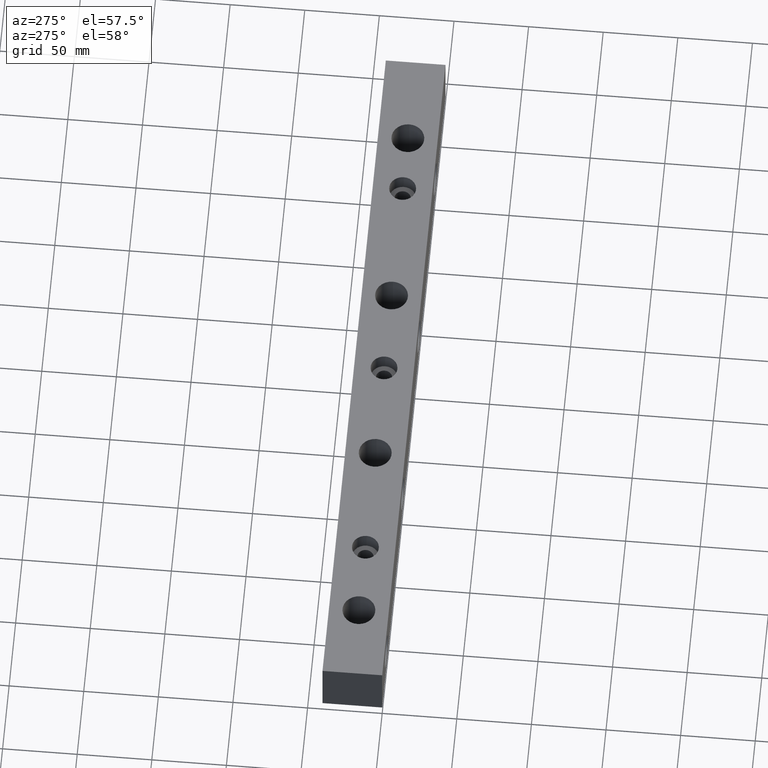
[diagram: clean part render]
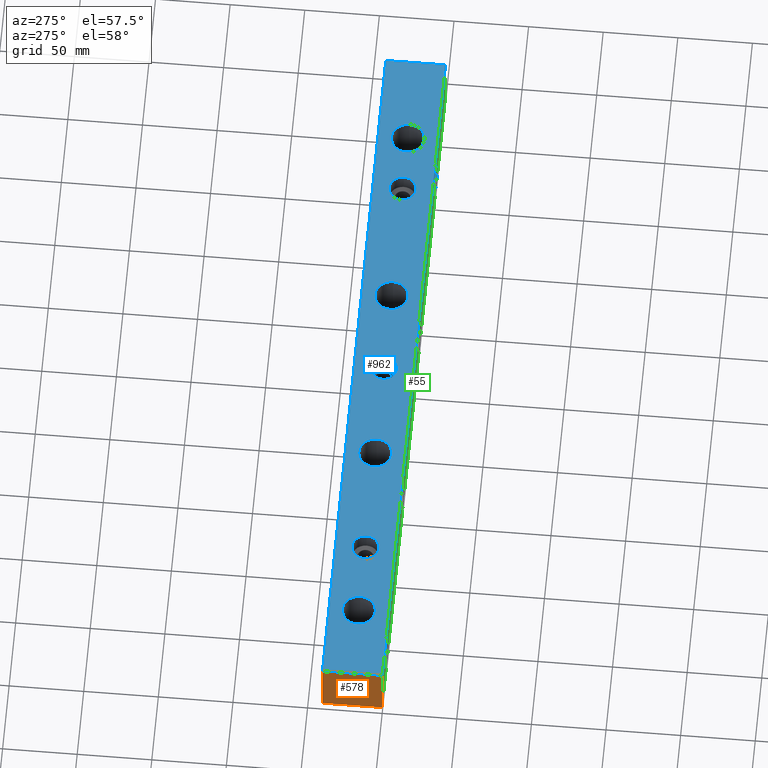
[diagram: same view with three faces highlighted in distinct colors, each labeled with its STEP entity id]
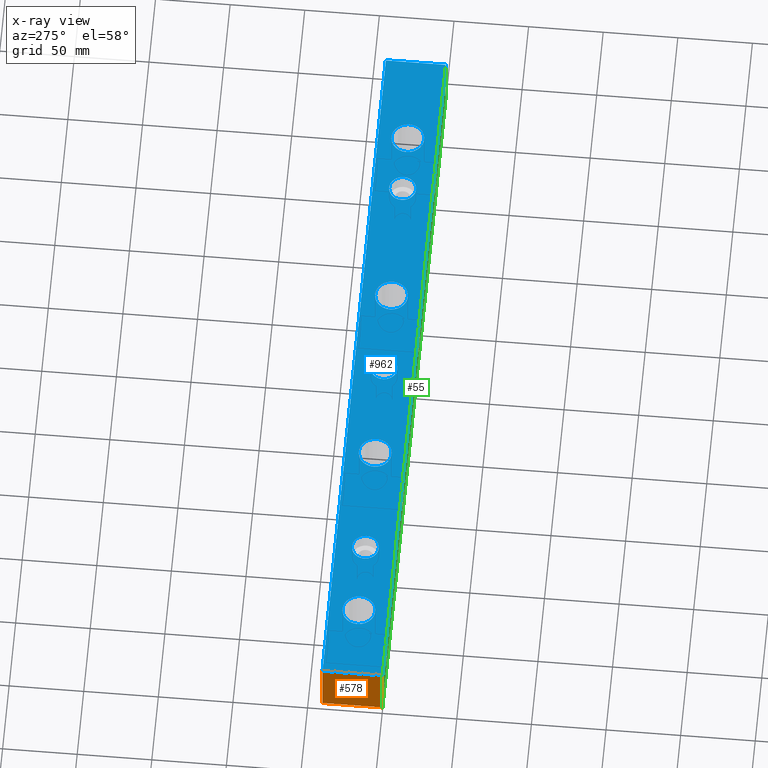
[diagram: x-ray of the same camera — body ghosted, the three highlighted faces saturated]
A machine part, auxiliary view with three faces highlighted in distinct colors.
The next image is the same camera in x-ray (body ghosted, the three faces saturated) — at least one of them is partly hidden behind the body in this view.
Their STEP definitions:

[orange] entity #578 — the highlighted planar face has unit normal (1, 0, 0).
#26 = EDGE_CURVE ( 'NONE', #1342, #852, #1680, .T. ) ;
#94 = CARTESIAN_POINT ( 'NONE',  ( 0.0000000000000000000, 0.0000000000000000000, 40.00000000000000000 ) ) ;
#123 = CARTESIAN_POINT ( 'NONE',  ( 0.0000000000000000000, 0.0000000000000000000, 40.00000000000000000 ) ) ;
#173 = VERTEX_POINT ( 'NONE', #936 ) ;
#195 = LINE ( 'NONE', #690, #463 ) ;
#214 = FACE_OUTER_BOUND ( 'NONE', #1349, .T. ) ;
#273 = DIRECTION ( 'NONE',  ( 1.000000000000000000, 0.0000000000000000000, 0.0000000000000000000 ) ) ;
#356 = DIRECTION ( 'NONE',  ( -0.0000000000000000000, -0.0000000000000000000, -1.000000000000000000 ) ) ;
#420 = DIRECTION ( 'NONE',  ( -0.0000000000000000000, -0.0000000000000000000, -1.000000000000000000 ) ) ;
#463 = VECTOR ( 'NONE', #420, 1000.000000000000000 ) ;
#520 = ORIENTED_EDGE ( 'NONE', *, *, #701, .T. ) ;
#578 = ADVANCED_FACE ( 'NONE', ( #214 ), #921, .F. ) ;
#591 = CARTESIAN_POINT ( 'NONE',  ( 0.0000000000000000000, 0.0000000000000000000, 40.00000000000000000 ) ) ;
#624 = ORIENTED_EDGE ( 'NONE', *, *, #1465, .F. ) ;
#682 = VECTOR ( 'NONE', #356, 1000.000000000000000 ) ;
#684 = DIRECTION ( 'NONE',  ( 0.0000000000000000000, 0.0000000000000000000, -1.000000000000000000 ) ) ;
#690 = CARTESIAN_POINT ( 'NONE',  ( 0.0000000000000000000, 40.00000000000000000, 40.00000000000000000 ) ) ;
#701 = EDGE_CURVE ( 'NONE', #173, #852, #1392, .T. ) ;
#707 = DIRECTION ( 'NONE',  ( -0.0000000000000000000, -1.000000000000000000, -0.0000000000000000000 ) ) ;
#783 = VECTOR ( 'NONE', #707, 1000.000000000000000 ) ;
#830 = CARTESIAN_POINT ( 'NONE',  ( 0.0000000000000000000, 0.0000000000000000000, 0.0000000000000000000 ) ) ;
#852 = VERTEX_POINT ( 'NONE', #830 ) ;
#892 = CARTESIAN_POINT ( 'NONE',  ( 0.0000000000000000000, 0.0000000000000000000, 40.00000000000000000 ) ) ;
#921 = PLANE ( 'NONE',  #1203 ) ;
#929 = ORIENTED_EDGE ( 'NONE', *, *, #1025, .T. ) ;
#936 = CARTESIAN_POINT ( 'NONE',  ( 0.0000000000000000000, 40.00000000000000000, 0.0000000000000000000 ) ) ;
#945 = LINE ( 'NONE', #94, #783 ) ;
#1025 = EDGE_CURVE ( 'NONE', #1488, #173, #195, .T. ) ;
#1203 = AXIS2_PLACEMENT_3D ( 'NONE', #123, #273, #684 ) ;
#1333 = DIRECTION ( 'NONE',  ( -0.0000000000000000000, -1.000000000000000000, -0.0000000000000000000 ) ) ;
#1342 = VERTEX_POINT ( 'NONE', #591 ) ;
#1349 = EDGE_LOOP ( 'NONE', ( #520, #1510, #624, #929 ) ) ;
#1392 = LINE ( 'NONE', #1585, #1529 ) ;
#1465 = EDGE_CURVE ( 'NONE', #1488, #1342, #945, .T. ) ;
#1488 = VERTEX_POINT ( 'NONE', #1652 ) ;
#1510 = ORIENTED_EDGE ( 'NONE', *, *, #26, .F. ) ;
#1529 = VECTOR ( 'NONE', #1333, 1000.000000000000000 ) ;
#1585 = CARTESIAN_POINT ( 'NONE',  ( 0.0000000000000000000, 0.0000000000000000000, 0.0000000000000000000 ) ) ;
#1652 = CARTESIAN_POINT ( 'NONE',  ( 0.0000000000000000000, 40.00000000000000000, 40.00000000000000000 ) ) ;
#1680 = LINE ( 'NONE', #892, #682 ) ;

[blue] entity #962 — the highlighted planar face has unit normal (0, 0, -1).
#5 = AXIS2_PLACEMENT_3D ( 'NONE', #688, #407, #1224 ) ;
#19 = CARTESIAN_POINT ( 'NONE',  ( 300.0000000000000000, 20.00000000000000000, 40.00000000000000000 ) ) ;
#34 = DIRECTION ( 'NONE',  ( 0.0000000000000000000, 1.000000000000000000, 0.0000000000000000000 ) ) ;
#38 = CARTESIAN_POINT ( 'NONE',  ( 50.00000000000000000, 20.00000000000000000, 40.00000000000000000 ) ) ;
#39 = FACE_BOUND ( 'NONE', #247, .T. ) ;
#49 = CARTESIAN_POINT ( 'NONE',  ( 414.0000000000000600, 20.00000000000000000, 40.00000000000000000 ) ) ;
#52 = EDGE_CURVE ( 'NONE', #1038, #1032, #396, .T. ) ;
#58 = VERTEX_POINT ( 'NONE', #1693 ) ;
#60 = AXIS2_PLACEMENT_3D ( 'NONE', #1520, #348, #1157 ) ;
#61 = DIRECTION ( 'NONE',  ( 1.000000000000000000, 0.0000000000000000000, 0.0000000000000000000 ) ) ;
#66 = ORIENTED_EDGE ( 'NONE', *, *, #899, .T. ) ;
#94 = CARTESIAN_POINT ( 'NONE',  ( 0.0000000000000000000, 0.0000000000000000000, 40.00000000000000000 ) ) ;
#106 = ORIENTED_EDGE ( 'NONE', *, *, #1354, .F. ) ;
#114 = EDGE_CURVE ( 'NONE', #1238, #1172, #1338, .T. ) ;
#118 = AXIS2_PLACEMENT_3D ( 'NONE', #187, #982, #61 ) ;
#125 = CARTESIAN_POINT ( 'NONE',  ( 100.0000000000000000, 20.00000000000000000, 40.00000000000000000 ) ) ;
#128 = CARTESIAN_POINT ( 'NONE',  ( 163.9999999999999700, 20.00000000000000000, 40.00000000000000000 ) ) ;
#133 = EDGE_CURVE ( 'NONE', #1032, #1038, #663, .T. ) ;
#135 = ORIENTED_EDGE ( 'NONE', *, *, #114, .F. ) ;
#146 = ORIENTED_EDGE ( 'NONE', *, *, #737, .F. ) ;
#147 = CARTESIAN_POINT ( 'NONE',  ( 100.0000000000000000, 20.00000000000000000, 40.00000000000000000 ) ) ;
#153 = ORIENTED_EDGE ( 'NONE', *, *, #228, .T. ) ;
#159 = CARTESIAN_POINT ( 'NONE',  ( 109.0000000000000000, 20.00000000000000000, 40.00000000000000000 ) ) ;
#160 = CIRCLE ( 'NONE', #1467, 9.000000000000007100 ) ;
#168 = VERTEX_POINT ( 'NONE', #1216 ) ;
#171 = EDGE_CURVE ( 'NONE', #1377, #1488, #1049, .T. ) ;
#179 = AXIS2_PLACEMENT_3D ( 'NONE', #19, #941, #1222 ) ;
#187 = CARTESIAN_POINT ( 'NONE',  ( 175.0000000000000000, 20.00000000000000000, 40.00000000000000000 ) ) ;
#196 = EDGE_CURVE ( 'NONE', #1594, #1324, #1653, .T. ) ;
#199 = ORIENTED_EDGE ( 'NONE', *, *, #602, .F. ) ;
#212 = CARTESIAN_POINT ( 'NONE',  ( 175.0000000000000000, 20.00000000000000000, 40.00000000000000000 ) ) ;
#224 = AXIS2_PLACEMENT_3D ( 'NONE', #818, #1041, #1060 ) ;
#228 = EDGE_CURVE ( 'NONE', #381, #1377, #1246, .T. ) ;
#247 = EDGE_LOOP ( 'NONE', ( #106, #199 ) ) ;
#268 = DIRECTION ( 'NONE',  ( 1.000000000000000000, 0.0000000000000000000, 0.0000000000000000000 ) ) ;
#294 = CIRCLE ( 'NONE', #1450, 9.000000000000007100 ) ;
#296 = LINE ( 'NONE', #467, #661 ) ;
#323 = CARTESIAN_POINT ( 'NONE',  ( 435.9999999999999400, 20.00000000000000000, 40.00000000000000000 ) ) ;
#348 = DIRECTION ( 'NONE',  ( 0.0000000000000000000, 0.0000000000000000000, -1.000000000000000000 ) ) ;
#357 = CARTESIAN_POINT ( 'NONE',  ( 39.00000000000000700, 20.00000000000000000, 40.00000000000000000 ) ) ;
#363 = VERTEX_POINT ( 'NONE', #357 ) ;
#380 = CARTESIAN_POINT ( 'NONE',  ( 385.0000000000000000, 20.00000000000000000, 40.00000000000000000 ) ) ;
#381 = VERTEX_POINT ( 'NONE', #795 ) ;
#390 = CARTESIAN_POINT ( 'NONE',  ( 242.5000000000000000, 20.00000000000000000, 40.00000000000000000 ) ) ;
#396 = CIRCLE ( 'NONE', #1261, 8.999999999999994700 ) ;
#397 = ORIENTED_EDGE ( 'NONE', *, *, #196, .F. ) ;
#401 = ORIENTED_EDGE ( 'NONE', *, *, #133, .F. ) ;
#402 = EDGE_LOOP ( 'NONE', ( #749, #1538 ) ) ;
#407 = DIRECTION ( 'NONE',  ( 0.0000000000000000000, 0.0000000000000000000, 1.000000000000000000 ) ) ;
#409 = CARTESIAN_POINT ( 'NONE',  ( 485.0000000000000000, 0.0000000000000000000, 40.00000000000000000 ) ) ;
#418 = AXIS2_PLACEMENT_3D ( 'NONE', #390, #1330, #521 ) ;
#419 = EDGE_LOOP ( 'NONE', ( #645, #401 ) ) ;
#443 = CARTESIAN_POINT ( 'NONE',  ( 376.0000000000000000, 20.00000000000000000, 40.00000000000000000 ) ) ;
#456 = EDGE_CURVE ( 'NONE', #58, #1633, #1019, .T. ) ;
#467 = CARTESIAN_POINT ( 'NONE',  ( 0.0000000000000000000, 0.0000000000000000000, 40.00000000000000000 ) ) ;
#478 = ORIENTED_EDGE ( 'NONE', *, *, #1073, .F. ) ;
#493 = VERTEX_POINT ( 'NONE', #128 ) ;
#512 = VERTEX_POINT ( 'NONE', #642 ) ;
#521 = DIRECTION ( 'NONE',  ( 1.000000000000000000, 0.0000000000000000000, 0.0000000000000000000 ) ) ;
#526 = EDGE_CURVE ( 'NONE', #168, #363, #1065, .T. ) ;
#529 = DIRECTION ( 'NONE',  ( -1.000000000000000000, -0.0000000000000000000, -0.0000000000000000000 ) ) ;
#542 = CARTESIAN_POINT ( 'NONE',  ( 425.0000000000000000, 20.00000000000000000, 40.00000000000000000 ) ) ;
#579 = CARTESIAN_POINT ( 'NONE',  ( 485.0000000000000000, 40.00000000000000000, 40.00000000000000000 ) ) ;
#585 = CARTESIAN_POINT ( 'NONE',  ( 300.0000000000000000, 20.00000000000000000, 40.00000000000000000 ) ) ;
#591 = CARTESIAN_POINT ( 'NONE',  ( 0.0000000000000000000, 0.0000000000000000000, 40.00000000000000000 ) ) ;
#592 = ORIENTED_EDGE ( 'NONE', *, *, #171, .T. ) ;
#602 = EDGE_CURVE ( 'NONE', #493, #512, #1433, .T. ) ;
#606 = DIRECTION ( 'NONE',  ( 1.000000000000000000, 0.0000000000000000000, 0.0000000000000000000 ) ) ;
#621 = CARTESIAN_POINT ( 'NONE',  ( 251.5000000000000000, 20.00000000000000000, 40.00000000000000000 ) ) ;
#632 = DIRECTION ( 'NONE',  ( 1.000000000000000000, 0.0000000000000000000, 0.0000000000000000000 ) ) ;
#634 = CIRCLE ( 'NONE', #857, 10.99999999999999600 ) ;
#642 = CARTESIAN_POINT ( 'NONE',  ( 186.0000000000000000, 20.00000000000000000, 40.00000000000000000 ) ) ;
#645 = ORIENTED_EDGE ( 'NONE', *, *, #52, .F. ) ;
#651 = DIRECTION ( 'NONE',  ( 1.000000000000000000, 0.0000000000000000000, 0.0000000000000000000 ) ) ;
#658 = DIRECTION ( 'NONE',  ( 0.0000000000000000000, 0.0000000000000000000, 1.000000000000000000 ) ) ;
#659 = CIRCLE ( 'NONE', #5, 10.99999999999995400 ) ;
#661 = VECTOR ( 'NONE', #866, 1000.000000000000000 ) ;
#663 = CIRCLE ( 'NONE', #708, 8.999999999999994700 ) ;
#670 = CARTESIAN_POINT ( 'NONE',  ( 91.00000000000001400, 20.00000000000000000, 40.00000000000000000 ) ) ;
#676 = CARTESIAN_POINT ( 'NONE',  ( 0.0000000000000000000, 40.00000000000000000, 40.00000000000000000 ) ) ;
#681 = EDGE_CURVE ( 'NONE', #1172, #1238, #294, .T. ) ;
#688 = CARTESIAN_POINT ( 'NONE',  ( 425.0000000000000000, 20.00000000000000000, 40.00000000000000000 ) ) ;
#696 = EDGE_CURVE ( 'NONE', #1324, #1594, #659, .T. ) ;
#697 = DIRECTION ( 'NONE',  ( 1.000000000000000000, 0.0000000000000000000, 0.0000000000000000000 ) ) ;
#707 = DIRECTION ( 'NONE',  ( -0.0000000000000000000, -1.000000000000000000, -0.0000000000000000000 ) ) ;
#708 = AXIS2_PLACEMENT_3D ( 'NONE', #147, #1067, #268 ) ;
#737 = EDGE_CURVE ( 'NONE', #1558, #1634, #1007, .T. ) ;
#749 = ORIENTED_EDGE ( 'NONE', *, *, #456, .F. ) ;
#757 = DIRECTION ( 'NONE',  ( 1.000000000000000000, 0.0000000000000000000, 0.0000000000000000000 ) ) ;
#783 = VECTOR ( 'NONE', #707, 1000.000000000000000 ) ;
#784 = DIRECTION ( 'NONE',  ( 0.0000000000000000000, 0.0000000000000000000, 1.000000000000000000 ) ) ;
#795 = CARTESIAN_POINT ( 'NONE',  ( 485.0000000000000000, 0.0000000000000000000, 40.00000000000000000 ) ) ;
#803 = FACE_BOUND ( 'NONE', #402, .T. ) ;
#814 = EDGE_LOOP ( 'NONE', ( #1665, #478 ) ) ;
#818 = CARTESIAN_POINT ( 'NONE',  ( 50.00000000000000000, 20.00000000000000000, 40.00000000000000000 ) ) ;
#829 = VECTOR ( 'NONE', #529, 1000.000000000000000 ) ;
#842 = FACE_OUTER_BOUND ( 'NONE', #969, .T. ) ;
#857 = AXIS2_PLACEMENT_3D ( 'NONE', #38, #1225, #1217 ) ;
#859 = AXIS2_PLACEMENT_3D ( 'NONE', #380, #658, #632 ) ;
#866 = DIRECTION ( 'NONE',  ( 1.000000000000000000, 0.0000000000000000000, 0.0000000000000000000 ) ) ;
#874 = EDGE_CURVE ( 'NONE', #1634, #1558, #881, .T. ) ;
#881 = CIRCLE ( 'NONE', #1170, 11.00000000000001100 ) ;
#887 = FACE_BOUND ( 'NONE', #1637, .T. ) ;
#899 = EDGE_CURVE ( 'NONE', #1342, #381, #296, .T. ) ;
#919 = FACE_BOUND ( 'NONE', #1446, .T. ) ;
#941 = DIRECTION ( 'NONE',  ( 0.0000000000000000000, 0.0000000000000000000, 1.000000000000000000 ) ) ;
#945 = LINE ( 'NONE', #94, #783 ) ;
#962 = ADVANCED_FACE ( 'NONE', ( #1008, #803, #1531, #39, #919, #887, #1248, #842 ), #1399, .F. ) ;
#969 = EDGE_LOOP ( 'NONE', ( #1571, #66, #153, #592 ) ) ;
#982 = DIRECTION ( 'NONE',  ( 0.0000000000000000000, 0.0000000000000000000, 1.000000000000000000 ) ) ;
#998 = DIRECTION ( 'NONE',  ( 0.0000000000000000000, 0.0000000000000000000, 1.000000000000000000 ) ) ;
#1007 = CIRCLE ( 'NONE', #179, 11.00000000000001100 ) ;
#1008 = FACE_BOUND ( 'NONE', #419, .T. ) ;
#1019 = CIRCLE ( 'NONE', #859, 9.000000000000007100 ) ;
#1032 = VERTEX_POINT ( 'NONE', #670 ) ;
#1036 = CARTESIAN_POINT ( 'NONE',  ( 385.0000000000000000, 20.00000000000000000, 40.00000000000000000 ) ) ;
#1038 = VERTEX_POINT ( 'NONE', #159 ) ;
#1041 = DIRECTION ( 'NONE',  ( 0.0000000000000000000, 0.0000000000000000000, 1.000000000000000000 ) ) ;
#1049 = LINE ( 'NONE', #676, #829 ) ;
#1055 = ORIENTED_EDGE ( 'NONE', *, *, #696, .F. ) ;
#1060 = DIRECTION ( 'NONE',  ( 1.000000000000000000, 0.0000000000000000000, 0.0000000000000000000 ) ) ;
#1065 = CIRCLE ( 'NONE', #224, 10.99999999999999600 ) ;
#1067 = DIRECTION ( 'NONE',  ( 0.0000000000000000000, 0.0000000000000000000, 1.000000000000000000 ) ) ;
#1073 = EDGE_CURVE ( 'NONE', #363, #168, #634, .T. ) ;
#1078 = EDGE_LOOP ( 'NONE', ( #135, #1613 ) ) ;
#1132 = VECTOR ( 'NONE', #34, 1000.000000000000000 ) ;
#1157 = DIRECTION ( 'NONE',  ( -1.000000000000000000, 0.0000000000000000000, -0.0000000000000000000 ) ) ;
#1170 = AXIS2_PLACEMENT_3D ( 'NONE', #585, #1390, #757 ) ;
#1172 = VERTEX_POINT ( 'NONE', #1518 ) ;
#1216 = CARTESIAN_POINT ( 'NONE',  ( 61.00000000000000000, 20.00000000000000000, 40.00000000000000000 ) ) ;
#1217 = DIRECTION ( 'NONE',  ( 1.000000000000000000, 0.0000000000000000000, 0.0000000000000000000 ) ) ;
#1222 = DIRECTION ( 'NONE',  ( 1.000000000000000000, 0.0000000000000000000, 0.0000000000000000000 ) ) ;
#1224 = DIRECTION ( 'NONE',  ( 1.000000000000000000, 0.0000000000000000000, 0.0000000000000000000 ) ) ;
#1225 = DIRECTION ( 'NONE',  ( 0.0000000000000000000, 0.0000000000000000000, 1.000000000000000000 ) ) ;
#1238 = VERTEX_POINT ( 'NONE', #621 ) ;
#1246 = LINE ( 'NONE', #409, #1132 ) ;
#1248 = FACE_BOUND ( 'NONE', #814, .T. ) ;
#1261 = AXIS2_PLACEMENT_3D ( 'NONE', #125, #1560, #651 ) ;
#1278 = EDGE_CURVE ( 'NONE', #1633, #58, #160, .T. ) ;
#1287 = AXIS2_PLACEMENT_3D ( 'NONE', #212, #998, #1371 ) ;
#1289 = DIRECTION ( 'NONE',  ( 0.0000000000000000000, 0.0000000000000000000, 1.000000000000000000 ) ) ;
#1324 = VERTEX_POINT ( 'NONE', #323 ) ;
#1330 = DIRECTION ( 'NONE',  ( 0.0000000000000000000, 0.0000000000000000000, 1.000000000000000000 ) ) ;
#1338 = CIRCLE ( 'NONE', #418, 9.000000000000007100 ) ;
#1342 = VERTEX_POINT ( 'NONE', #591 ) ;
#1354 = EDGE_CURVE ( 'NONE', #512, #493, #1504, .T. ) ;
#1371 = DIRECTION ( 'NONE',  ( 1.000000000000000000, 0.0000000000000000000, 0.0000000000000000000 ) ) ;
#1372 = CARTESIAN_POINT ( 'NONE',  ( 311.0000000000000000, 20.00000000000000000, 40.00000000000000000 ) ) ;
#1377 = VERTEX_POINT ( 'NONE', #579 ) ;
#1390 = DIRECTION ( 'NONE',  ( 0.0000000000000000000, 0.0000000000000000000, 1.000000000000000000 ) ) ;
#1399 = PLANE ( 'NONE',  #60 ) ;
#1405 = ORIENTED_EDGE ( 'NONE', *, *, #874, .F. ) ;
#1433 = CIRCLE ( 'NONE', #1287, 11.00000000000001100 ) ;
#1446 = EDGE_LOOP ( 'NONE', ( #146, #1405 ) ) ;
#1450 = AXIS2_PLACEMENT_3D ( 'NONE', #1562, #784, #1694 ) ;
#1465 = EDGE_CURVE ( 'NONE', #1488, #1342, #945, .T. ) ;
#1467 = AXIS2_PLACEMENT_3D ( 'NONE', #1036, #1289, #606 ) ;
#1469 = DIRECTION ( 'NONE',  ( 0.0000000000000000000, 0.0000000000000000000, 1.000000000000000000 ) ) ;
#1487 = CARTESIAN_POINT ( 'NONE',  ( 289.0000000000000000, 20.00000000000000000, 40.00000000000000000 ) ) ;
#1488 = VERTEX_POINT ( 'NONE', #1652 ) ;
#1504 = CIRCLE ( 'NONE', #118, 11.00000000000001100 ) ;
#1518 = CARTESIAN_POINT ( 'NONE',  ( 233.5000000000000000, 20.00000000000000000, 40.00000000000000000 ) ) ;
#1520 = CARTESIAN_POINT ( 'NONE',  ( 0.0000000000000000000, 0.0000000000000000000, 40.00000000000000000 ) ) ;
#1531 = FACE_BOUND ( 'NONE', #1078, .T. ) ;
#1538 = ORIENTED_EDGE ( 'NONE', *, *, #1278, .F. ) ;
#1558 = VERTEX_POINT ( 'NONE', #1372 ) ;
#1560 = DIRECTION ( 'NONE',  ( 0.0000000000000000000, 0.0000000000000000000, 1.000000000000000000 ) ) ;
#1562 = CARTESIAN_POINT ( 'NONE',  ( 242.5000000000000000, 20.00000000000000000, 40.00000000000000000 ) ) ;
#1571 = ORIENTED_EDGE ( 'NONE', *, *, #1465, .T. ) ;
#1572 = AXIS2_PLACEMENT_3D ( 'NONE', #542, #1469, #697 ) ;
#1594 = VERTEX_POINT ( 'NONE', #49 ) ;
#1613 = ORIENTED_EDGE ( 'NONE', *, *, #681, .F. ) ;
#1633 = VERTEX_POINT ( 'NONE', #443 ) ;
#1634 = VERTEX_POINT ( 'NONE', #1487 ) ;
#1637 = EDGE_LOOP ( 'NONE', ( #1055, #397 ) ) ;
#1652 = CARTESIAN_POINT ( 'NONE',  ( 0.0000000000000000000, 40.00000000000000000, 40.00000000000000000 ) ) ;
#1653 = CIRCLE ( 'NONE', #1572, 10.99999999999995400 ) ;
#1665 = ORIENTED_EDGE ( 'NONE', *, *, #526, .F. ) ;
#1693 = CARTESIAN_POINT ( 'NONE',  ( 394.0000000000000000, 20.00000000000000000, 40.00000000000000000 ) ) ;
#1694 = DIRECTION ( 'NONE',  ( 1.000000000000000000, 0.0000000000000000000, 0.0000000000000000000 ) ) ;

[green] entity #55 — the highlighted planar face has unit normal (0, 1, 0).
#20 = VERTEX_POINT ( 'NONE', #633 ) ;
#25 = ORIENTED_EDGE ( 'NONE', *, *, #1517, .F. ) ;
#26 = EDGE_CURVE ( 'NONE', #1342, #852, #1680, .T. ) ;
#45 = EDGE_CURVE ( 'NONE', #221, #494, #1456, .T. ) ;
#51 = CIRCLE ( 'NONE', #806, 10.99999999999997500 ) ;
#55 = ADVANCED_FACE ( 'NONE', ( #617, #317, #845, #1588, #904 ), #1192, .F. ) ;
#64 = CARTESIAN_POINT ( 'NONE',  ( 282.0000000000000000, 0.0000000000000000000, 20.00000000000000000 ) ) ;
#131 = CARTESIAN_POINT ( 'NONE',  ( 32.00000000000000000, 0.0000000000000000000, 20.00000000000000000 ) ) ;
#137 = CIRCLE ( 'NONE', #719, 11.00000000000000700 ) ;
#163 = DIRECTION ( 'NONE',  ( 0.0000000000000000000, 0.0000000000000000000, -1.000000000000000000 ) ) ;
#191 = CARTESIAN_POINT ( 'NONE',  ( 282.0000000000000000, 0.0000000000000000000, 30.99999999999997500 ) ) ;
#219 = DIRECTION ( 'NONE',  ( 0.0000000000000000000, 0.0000000000000000000, -1.000000000000000000 ) ) ;
#221 = VERTEX_POINT ( 'NONE', #946 ) ;
#225 = VERTEX_POINT ( 'NONE', #689 ) ;
#242 = VERTEX_POINT ( 'NONE', #954 ) ;
#245 = CARTESIAN_POINT ( 'NONE',  ( 0.0000000000000000000, 0.0000000000000000000, 40.00000000000000000 ) ) ;
#253 = DIRECTION ( 'NONE',  ( 0.0000000000000000000, -1.000000000000000000, 0.0000000000000000000 ) ) ;
#259 = AXIS2_PLACEMENT_3D ( 'NONE', #662, #272, #1583 ) ;
#272 = DIRECTION ( 'NONE',  ( 0.0000000000000000000, -1.000000000000000000, 0.0000000000000000000 ) ) ;
#275 = EDGE_CURVE ( 'NONE', #381, #242, #1676, .T. ) ;
#296 = LINE ( 'NONE', #467, #661 ) ;
#317 = FACE_BOUND ( 'NONE', #1309, .T. ) ;
#322 = AXIS2_PLACEMENT_3D ( 'NONE', #245, #1199, #1050 ) ;
#333 = CIRCLE ( 'NONE', #379, 11.00000000000000700 ) ;
#356 = DIRECTION ( 'NONE',  ( -0.0000000000000000000, -0.0000000000000000000, -1.000000000000000000 ) ) ;
#365 = DIRECTION ( 'NONE',  ( 0.0000000000000000000, 0.0000000000000000000, -1.000000000000000000 ) ) ;
#368 = CIRCLE ( 'NONE', #1193, 10.99999999999997500 ) ;
#379 = AXIS2_PLACEMENT_3D ( 'NONE', #404, #253, #942 ) ;
#381 = VERTEX_POINT ( 'NONE', #795 ) ;
#404 = CARTESIAN_POINT ( 'NONE',  ( 157.0000000000000000, 0.0000000000000000000, 20.00000000000000000 ) ) ;
#433 = VERTEX_POINT ( 'NONE', #1428 ) ;
#446 = ORIENTED_EDGE ( 'NONE', *, *, #797, .F. ) ;
#447 = DIRECTION ( 'NONE',  ( 0.0000000000000000000, -1.000000000000000000, 0.0000000000000000000 ) ) ;
#454 = DIRECTION ( 'NONE',  ( 0.0000000000000000000, -1.000000000000000000, 0.0000000000000000000 ) ) ;
#462 = EDGE_CURVE ( 'NONE', #1028, #1457, #137, .T. ) ;
#467 = CARTESIAN_POINT ( 'NONE',  ( 0.0000000000000000000, 0.0000000000000000000, 40.00000000000000000 ) ) ;
#469 = CIRCLE ( 'NONE', #831, 11.00000000000000700 ) ;
#470 = ORIENTED_EDGE ( 'NONE', *, *, #1537, .F. ) ;
#474 = DIRECTION ( 'NONE',  ( 1.000000000000000000, 0.0000000000000000000, 0.0000000000000000000 ) ) ;
#491 = EDGE_LOOP ( 'NONE', ( #446, #1591 ) ) ;
#492 = EDGE_CURVE ( 'NONE', #433, #225, #51, .T. ) ;
#494 = VERTEX_POINT ( 'NONE', #1029 ) ;
#575 = ORIENTED_EDGE ( 'NONE', *, *, #721, .F. ) ;
#577 = EDGE_CURVE ( 'NONE', #1457, #1028, #333, .T. ) ;
#591 = CARTESIAN_POINT ( 'NONE',  ( 0.0000000000000000000, 0.0000000000000000000, 40.00000000000000000 ) ) ;
#597 = ORIENTED_EDGE ( 'NONE', *, *, #462, .F. ) ;
#617 = FACE_BOUND ( 'NONE', #1458, .T. ) ;
#633 = CARTESIAN_POINT ( 'NONE',  ( 282.0000000000000000, 0.0000000000000000000, 9.000000000000024900 ) ) ;
#661 = VECTOR ( 'NONE', #866, 1000.000000000000000 ) ;
#662 = CARTESIAN_POINT ( 'NONE',  ( 282.0000000000000000, 0.0000000000000000000, 20.00000000000000000 ) ) ;
#665 = EDGE_LOOP ( 'NONE', ( #1104, #794, #1171, #1013 ) ) ;
#682 = VECTOR ( 'NONE', #356, 1000.000000000000000 ) ;
#689 = CARTESIAN_POINT ( 'NONE',  ( 407.0000000000000000, 0.0000000000000000000, 9.000000000000024900 ) ) ;
#718 = CARTESIAN_POINT ( 'NONE',  ( 32.00000000000000000, 0.0000000000000000000, 20.00000000000000000 ) ) ;
#719 = AXIS2_PLACEMENT_3D ( 'NONE', #1686, #1692, #1438 ) ;
#721 = EDGE_CURVE ( 'NONE', #20, #1352, #1699, .T. ) ;
#782 = DIRECTION ( 'NONE',  ( 0.0000000000000000000, 0.0000000000000000000, -1.000000000000000000 ) ) ;
#794 = ORIENTED_EDGE ( 'NONE', *, *, #275, .F. ) ;
#795 = CARTESIAN_POINT ( 'NONE',  ( 485.0000000000000000, 0.0000000000000000000, 40.00000000000000000 ) ) ;
#797 = EDGE_CURVE ( 'NONE', #225, #433, #1675, .T. ) ;
#804 = AXIS2_PLACEMENT_3D ( 'NONE', #1292, #1162, #219 ) ;
#806 = AXIS2_PLACEMENT_3D ( 'NONE', #1184, #1180, #365 ) ;
#830 = CARTESIAN_POINT ( 'NONE',  ( 0.0000000000000000000, 0.0000000000000000000, 0.0000000000000000000 ) ) ;
#831 = AXIS2_PLACEMENT_3D ( 'NONE', #718, #447, #1259 ) ;
#845 = FACE_BOUND ( 'NONE', #491, .T. ) ;
#850 = EDGE_LOOP ( 'NONE', ( #25, #922 ) ) ;
#852 = VERTEX_POINT ( 'NONE', #830 ) ;
#866 = DIRECTION ( 'NONE',  ( 1.000000000000000000, 0.0000000000000000000, 0.0000000000000000000 ) ) ;
#892 = CARTESIAN_POINT ( 'NONE',  ( 0.0000000000000000000, 0.0000000000000000000, 40.00000000000000000 ) ) ;
#898 = LINE ( 'NONE', #1663, #1578 ) ;
#899 = EDGE_CURVE ( 'NONE', #1342, #381, #296, .T. ) ;
#904 = FACE_OUTER_BOUND ( 'NONE', #665, .T. ) ;
#911 = DIRECTION ( 'NONE',  ( 0.0000000000000000000, -1.000000000000000000, 0.0000000000000000000 ) ) ;
#922 = ORIENTED_EDGE ( 'NONE', *, *, #45, .F. ) ;
#939 = VECTOR ( 'NONE', #1347, 1000.000000000000000 ) ;
#942 = DIRECTION ( 'NONE',  ( 0.0000000000000000000, 0.0000000000000000000, -1.000000000000000000 ) ) ;
#946 = CARTESIAN_POINT ( 'NONE',  ( 32.00000000000000000, 0.0000000000000000000, 31.00000000000000700 ) ) ;
#954 = CARTESIAN_POINT ( 'NONE',  ( 485.0000000000000000, 0.0000000000000000000, 0.0000000000000000000 ) ) ;
#1013 = ORIENTED_EDGE ( 'NONE', *, *, #26, .T. ) ;
#1028 = VERTEX_POINT ( 'NONE', #1600 ) ;
#1029 = CARTESIAN_POINT ( 'NONE',  ( 32.00000000000000000, 0.0000000000000000000, 8.999999999999994700 ) ) ;
#1050 = DIRECTION ( 'NONE',  ( 0.0000000000000000000, -0.0000000000000000000, 1.000000000000000000 ) ) ;
#1104 = ORIENTED_EDGE ( 'NONE', *, *, #1636, .T. ) ;
#1124 = CARTESIAN_POINT ( 'NONE',  ( 157.0000000000000000, 0.0000000000000000000, 31.00000000000000700 ) ) ;
#1162 = DIRECTION ( 'NONE',  ( 0.0000000000000000000, -1.000000000000000000, 0.0000000000000000000 ) ) ;
#1171 = ORIENTED_EDGE ( 'NONE', *, *, #899, .F. ) ;
#1180 = DIRECTION ( 'NONE',  ( 0.0000000000000000000, -1.000000000000000000, 0.0000000000000000000 ) ) ;
#1184 = CARTESIAN_POINT ( 'NONE',  ( 407.0000000000000000, 0.0000000000000000000, 20.00000000000000000 ) ) ;
#1192 = PLANE ( 'NONE',  #322 ) ;
#1193 = AXIS2_PLACEMENT_3D ( 'NONE', #64, #454, #163 ) ;
#1199 = DIRECTION ( 'NONE',  ( 0.0000000000000000000, 1.000000000000000000, 0.0000000000000000000 ) ) ;
#1236 = CARTESIAN_POINT ( 'NONE',  ( 485.0000000000000000, 0.0000000000000000000, 40.00000000000000000 ) ) ;
#1259 = DIRECTION ( 'NONE',  ( 0.0000000000000000000, 0.0000000000000000000, -1.000000000000000000 ) ) ;
#1292 = CARTESIAN_POINT ( 'NONE',  ( 407.0000000000000000, 0.0000000000000000000, 20.00000000000000000 ) ) ;
#1309 = EDGE_LOOP ( 'NONE', ( #575, #470 ) ) ;
#1342 = VERTEX_POINT ( 'NONE', #591 ) ;
#1347 = DIRECTION ( 'NONE',  ( -0.0000000000000000000, -0.0000000000000000000, -1.000000000000000000 ) ) ;
#1352 = VERTEX_POINT ( 'NONE', #191 ) ;
#1401 = ORIENTED_EDGE ( 'NONE', *, *, #577, .F. ) ;
#1428 = CARTESIAN_POINT ( 'NONE',  ( 407.0000000000000000, 0.0000000000000000000, 30.99999999999997500 ) ) ;
#1438 = DIRECTION ( 'NONE',  ( 0.0000000000000000000, 0.0000000000000000000, -1.000000000000000000 ) ) ;
#1456 = CIRCLE ( 'NONE', #1682, 11.00000000000000700 ) ;
#1457 = VERTEX_POINT ( 'NONE', #1124 ) ;
#1458 = EDGE_LOOP ( 'NONE', ( #597, #1401 ) ) ;
#1517 = EDGE_CURVE ( 'NONE', #494, #221, #469, .T. ) ;
#1537 = EDGE_CURVE ( 'NONE', #1352, #20, #368, .T. ) ;
#1578 = VECTOR ( 'NONE', #474, 1000.000000000000000 ) ;
#1583 = DIRECTION ( 'NONE',  ( 0.0000000000000000000, 0.0000000000000000000, -1.000000000000000000 ) ) ;
#1588 = FACE_BOUND ( 'NONE', #850, .T. ) ;
#1591 = ORIENTED_EDGE ( 'NONE', *, *, #492, .F. ) ;
#1600 = CARTESIAN_POINT ( 'NONE',  ( 157.0000000000000000, 0.0000000000000000000, 8.999999999999994700 ) ) ;
#1636 = EDGE_CURVE ( 'NONE', #852, #242, #898, .T. ) ;
#1663 = CARTESIAN_POINT ( 'NONE',  ( 0.0000000000000000000, 0.0000000000000000000, 0.0000000000000000000 ) ) ;
#1675 = CIRCLE ( 'NONE', #804, 10.99999999999997500 ) ;
#1676 = LINE ( 'NONE', #1236, #939 ) ;
#1680 = LINE ( 'NONE', #892, #682 ) ;
#1682 = AXIS2_PLACEMENT_3D ( 'NONE', #131, #911, #782 ) ;
#1686 = CARTESIAN_POINT ( 'NONE',  ( 157.0000000000000000, 0.0000000000000000000, 20.00000000000000000 ) ) ;
#1692 = DIRECTION ( 'NONE',  ( 0.0000000000000000000, -1.000000000000000000, 0.0000000000000000000 ) ) ;
#1699 = CIRCLE ( 'NONE', #259, 10.99999999999997500 ) ;